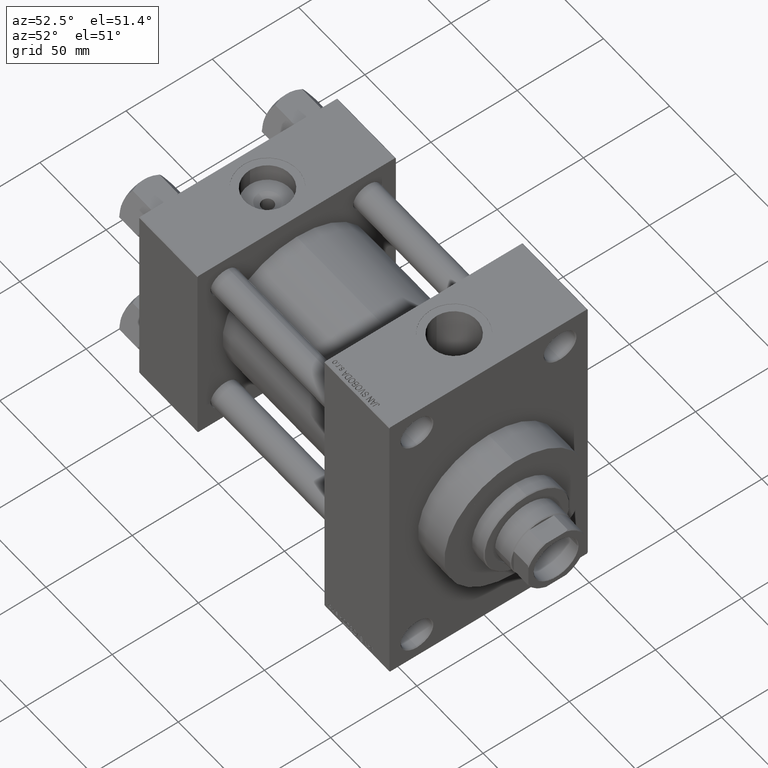
[diagram: clean part render]
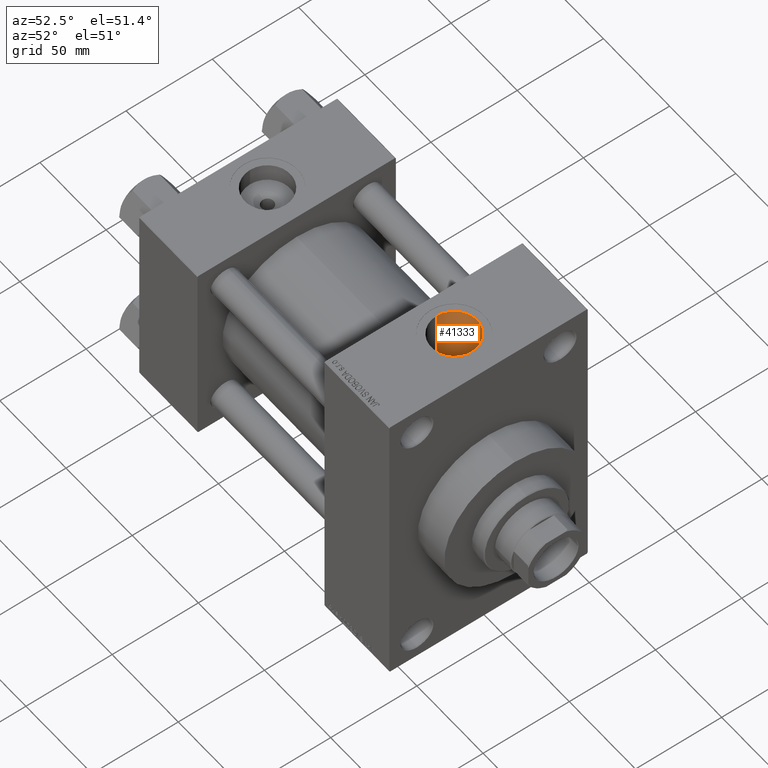
[diagram: same view with one face highlighted and labeled with its STEP entity id]
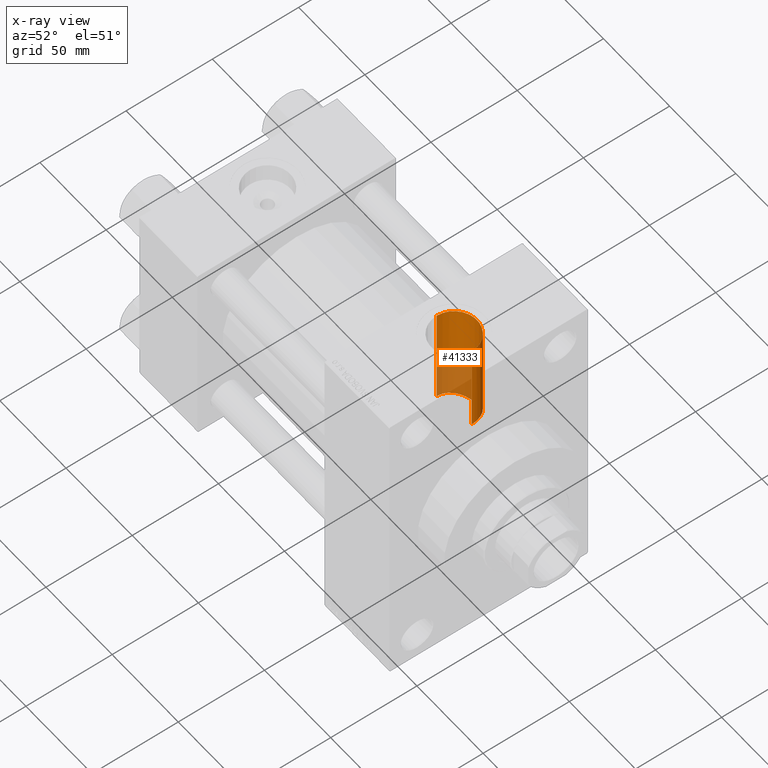
[diagram: x-ray of the same camera — body ghosted, the highlighted face saturated]
A machine part, auxiliary view. The second image highlights one B-rep face of the part: STEP entity #41333.
The next image is the same camera in x-ray: the body ghosted, the highlighted face saturated — about 34% of this face is hidden behind the body in this view.
In plain terms, the highlighted cylindrical surface (edge-blend (fillet) strip) has radius 13.22 mm, axis along (0, 0, -1).
Its self-contained STEP definition (entity closure, byte-faithful):
#838 = DIRECTION ( 'NONE',  ( 0.000000000000000000, 0.000000000000000000, -1.000000000000000000 ) ) ;
#1050 = DIRECTION ( 'NONE',  ( -0.000000000000000000, -0.000000000000000000, -1.000000000000000000 ) ) ;
#1386 = CARTESIAN_POINT ( 'NONE',  ( 149.7799999999999727, 3.735152335644797090E-15, 30.50000000000000000 ) ) ;
#1436 = AXIS2_PLACEMENT_3D ( 'NONE', #37422, #1050, #33093 ) ;
#3128 = CARTESIAN_POINT ( 'NONE',  ( 176.2033327349465424, 0.7640029534827996738, 35.99386990409604437 ) ) ;
#3602 = CARTESIAN_POINT ( 'NONE',  ( 172.2544909056830136, 9.447833359205608517, 34.73924717178599764 ) ) ;
#4969 = CARTESIAN_POINT ( 'NONE',  ( 153.9320074090819332, 9.632030437268104706, 28.94142039359465102 ) ) ;
#5448 = CARTESIAN_POINT ( 'NONE',  ( 149.8074965746004636, 0.9872482238805276866, 30.48805017778670745 ) ) ;
#5793 = ORIENTED_EDGE ( 'NONE', *, *, #13694, .T. ) ;
#5921 = CARTESIAN_POINT ( 'NONE',  ( 156.6661582615323596, 11.61426874580969226, 28.20310319464546112 ) ) ;
#6216 = VERTEX_POINT ( 'NONE', #21879 ) ;
#6275 = CARTESIAN_POINT ( 'NONE',  ( 174.1498648550291364, 7.141648424859574185, 35.29067191690104721 ) ) ;
#6740 = CARTESIAN_POINT ( 'NONE',  ( 175.1796393711020130, 5.154167772853369023, 35.63079688237382925 ) ) ;
#7756 = CARTESIAN_POINT ( 'NONE',  ( 161.8033419719260166, 13.17521242515511126, 27.50761348180682830 ) ) ;
#8381 = EDGE_CURVE ( 'NONE', #34270, #43379, #42970, .T. ) ;
#8591 = CARTESIAN_POINT ( 'NONE',  ( 152.0260244560768399, 7.434870375886682758, 29.59044782374041560 ) ) ;
#8782 = EDGE_CURVE ( 'NONE', #43379, #46857, #36297, .T. ) ;
#9287 = CARTESIAN_POINT ( 'NONE',  ( 149.7799999999999727, -1.086087741481131350E-14, 89.79999999999998295 ) ) ;
#9539 = CARTESIAN_POINT ( 'NONE',  ( 155.0371891369869104, 10.56380609296691908, 28.61398279029830150 ) ) ;
#11138 = CARTESIAN_POINT ( 'NONE',  ( 160.8119409645370297, 13.04724532387754898, 27.56854024737251407 ) ) ;
#12202 = CARTESIAN_POINT ( 'NONE',  ( 150.0034013176459098, 2.469744289827833672, 30.40367189608674181 ) ) ;
#12533 = CARTESIAN_POINT ( 'NONE',  ( 176.2199999999999989, -9.241894346338509984E-15, 89.79999999999998295 ) ) ;
#12579 = DIRECTION ( 'NONE',  ( 0.000000000000000000, 0.000000000000000000, -1.000000000000000000 ) ) ;
#12946 = ORIENTED_EDGE ( 'NONE', *, *, #20931, .T. ) ;
#13154 = CARTESIAN_POINT ( 'NONE',  ( 150.8710626762528761, 5.282033915368373300, 30.04254330308662091 ) ) ;
#13499 = CARTESIAN_POINT ( 'NONE',  ( 171.1482271659914716, 10.43671964436603261, 34.45770319535727566 ) ) ;
#13694 = EDGE_CURVE ( 'NONE', #42915, #6216, #31137, .T. ) ;
#13968 = CARTESIAN_POINT ( 'NONE',  ( 172.7718099334105091, 8.911727539146795607, 34.88062444271565710 ) ) ;
#14202 = CARTESIAN_POINT ( 'NONE',  ( 176.2199999999999989, 4.408731805096607676E-15, 36.00000000000000000 ) ) ;
#14505 = CARTESIAN_POINT ( 'NONE',  ( 164.7607663062245251, 13.11151955524789159, 27.53798861069347836 ) ) ;
#14628 = CARTESIAN_POINT ( 'NONE',  ( 176.2199999999999989, -9.241894346338509984E-15, 112.7999999999999829 ) ) ;
#15300 = VECTOR ( 'NONE', #32684, 1000.000000000000000 ) ;
#15953 = FACE_OUTER_BOUND ( 'NONE', #18620, .T. ) ;
#16284 = CARTESIAN_POINT ( 'NONE',  ( 154.2896176093950658, 9.956384615881496813, 28.83096279477899415 ) ) ;
#16758 = CARTESIAN_POINT ( 'NONE',  ( 149.7799999999999727, 3.735152335644797090E-15, 30.50000000000000000 ) ) ;
#17812 = CARTESIAN_POINT ( 'NONE',  ( 166.4867003901544535, 12.77473711426743108, 33.65761171941715446 ) ) ;
#18288 = CARTESIAN_POINT ( 'NONE',  ( 171.9855853527145939, 9.703877399782248503, 34.66842035655219689 ) ) ;
#18348 = CARTESIAN_POINT ( 'NONE',  ( 158.8969839307879113, 12.60537237624626528, 27.77446624569848765 ) ) ;
#18620 = EDGE_LOOP ( 'NONE', ( #34723, #39808, #12946, #5793, #26385, #42503 ) ) ;
#19145 = CARTESIAN_POINT ( 'NONE',  ( 149.7799999999999727, -1.086087741481131350E-14, 112.7999999999999829 ) ) ;
#19583 = EDGE_CURVE ( 'NONE', #27058, #46857, #23309, .T. ) ;
#19894 = CARTESIAN_POINT ( 'NONE',  ( 149.9192796940201617, 1.977766912824128420, 30.43984725220107990 ) ) ;
#20931 = EDGE_CURVE ( 'NONE', #34270, #42915, #44696, .T. ) ;
#21427 = CARTESIAN_POINT ( 'NONE',  ( 175.3223465543050281, 4.803346231252598741, 35.67993160896550364 ) ) ;
#21729 = CARTESIAN_POINT ( 'NONE',  ( 165.2536187678446993, 13.03598049970484318, 27.57401237756085166 ) ) ;
#21879 = CARTESIAN_POINT ( 'NONE',  ( 165.7400000000000091, 12.93293470176046078, 27.62225914004863014 ) ) ;
#23278 = CARTESIAN_POINT ( 'NONE',  ( 153.2493793498786090, 8.940352169284503603, 29.16250894268882377 ) ) ;
#23309 = B_SPLINE_CURVE_WITH_KNOTS ( 'NONE', 3,
 ( #36594, #17812, #46992, #39268, #28426, #39723, #13499, #18288, #3602, #13968, #32026, #35642, #6275, #46751, #36119, #6740, #21427, #28897, #47229, #43122, #28661, #3128, #32508, #14202 ),
 .UNSPECIFIED., .F., .F.,
 ( 4, 2, 2, 2, 2, 2, 2, 2, 2, 2, 2, 4 ),
 ( 0.000000000000000000, 0.002262540966026029086, 0.004525081932052058172, 0.006787622898078087691, 0.007918893381091132375, 0.009050163864104177058, 0.01131270483013032194, 0.01244397531314339438, 0.01357524579615646508, 0.01583778676218263945, 0.01696905724519572403, 0.01810032772820881208 ),
 .UNSPECIFIED. ) ;
#23417 = CYLINDRICAL_SURFACE ( 'NONE', #36798, 13.22000000000000952 ) ;
#23828 = EDGE_CURVE ( 'NONE', #27058, #6216, #25183, .T. ) ;
#24229 = CARTESIAN_POINT ( 'NONE',  ( 155.4271501200176715, 10.84687044312923199, 28.50745100355763739 ) ) ;
#25183 = LINE ( 'NONE', #43976, #39516 ) ;
#26385 = ORIENTED_EDGE ( 'NONE', *, *, #23828, .F. ) ;
#27058 = VERTEX_POINT ( 'NONE', #45253 ) ;
#27903 = VECTOR ( 'NONE', #838, 1000.000000000000000 ) ;
#28426 = CARTESIAN_POINT ( 'NONE',  ( 169.2649626807106813, 11.66558850424323701, 34.06003150599317308 ) ) ;
#28661 = CARTESIAN_POINT ( 'NONE',  ( 176.1379817546421407, 1.518265865167177875, 35.96994912351961204 ) ) ;
#28897 = CARTESIAN_POINT ( 'NONE',  ( 175.7051556392587202, 3.731388303156866648, 35.81334052950151658 ) ) ;
#29742 = DIRECTION ( 'NONE',  ( 0.000000000000000000, 0.000000000000000000, -1.000000000000000000 ) ) ;
#30639 = DIRECTION ( 'NONE',  ( -1.000000000000000000, 0.000000000000000000, 0.000000000000000000 ) ) ;
#31137 = B_SPLINE_CURVE_WITH_KNOTS ( 'NONE', 3,
 ( #16758, #38434, #5448, #19894, #12202, #41576, #31444, #46163, #13154, #38912, #8591, #42527, #23278, #4969, #16284, #9539, #24229, #45449, #5921, #46404, #18348, #44137, #11138, #7756, #42769, #43009, #33044, #14505, #21729, #32804 ),
 .UNSPECIFIED., .F., .F.,
 ( 4, 2, 2, 2, 2, 2, 2, 2, 2, 2, 2, 2, 2, 2, 4 ),
 ( 0.04185757538675118072, 0.04333653936425795050, 0.04481550334176472028, 0.04629446731927149006, 0.04777343129677825984, 0.05073135925179179939, 0.05221032322929854141, 0.05368928720680528344, 0.05516825118431202546, 0.05664721516181876748, 0.05960514311683218214, 0.06108410709433888253, 0.06256307107184558292, 0.06404203504935229718, 0.06552099902685899757 ),
 .UNSPECIFIED. ) ;
#31444 = CARTESIAN_POINT ( 'NONE',  ( 150.3594029954051337, 3.901785162874671808, 30.25300952143916433 ) ) ;
#32026 = CARTESIAN_POINT ( 'NONE',  ( 173.0210832298416221, 8.630590761265711564, 34.95143037011762033 ) ) ;
#32508 = CARTESIAN_POINT ( 'NONE',  ( 176.2200000000000273, 0.3819698288429408950, 36.00000000000000000 ) ) ;
#32684 = DIRECTION ( 'NONE',  ( 0.000000000000000000, 0.000000000000000000, -1.000000000000000000 ) ) ;
#32804 = CARTESIAN_POINT ( 'NONE',  ( 165.7400000000000091, 12.93293470176046078, 27.62225914004863014 ) ) ;
#33044 = CARTESIAN_POINT ( 'NONE',  ( 163.7777193278498942, 13.20633922326214282, 27.49264203546940877 ) ) ;
#33093 = DIRECTION ( 'NONE',  ( 1.000000000000000000, 0.000000000000000000, 0.000000000000000000 ) ) ;
#34270 = VERTEX_POINT ( 'NONE', #9287 ) ;
#34723 = ORIENTED_EDGE ( 'NONE', *, *, #8782, .F. ) ;
#35642 = CARTESIAN_POINT ( 'NONE',  ( 173.7312113704627734, 7.757108125705377333, 35.15943117783077554 ) ) ;
#36119 = CARTESIAN_POINT ( 'NONE',  ( 174.8678405391318904, 5.836387716606536102, 35.52542343625399468 ) ) ;
#36297 = LINE ( 'NONE', #14628, #15300 ) ;
#36594 = CARTESIAN_POINT ( 'NONE',  ( 165.7400000000000091, 12.93293470176046078, 33.59671412504503252 ) ) ;
#36798 = AXIS2_PLACEMENT_3D ( 'NONE', #38341, #12579, #30639 ) ;
#37422 = CARTESIAN_POINT ( 'NONE',  ( 162.9999999999999716, -1.086087741481131350E-14, 89.79999999999998295 ) ) ;
#38341 = CARTESIAN_POINT ( 'NONE',  ( 162.9999999999999716, -1.086087741481131350E-14, 112.7999999999999829 ) ) ;
#38434 = CARTESIAN_POINT ( 'NONE',  ( 149.7800000000000011, 0.4930897905089562938, 30.50000000000001066 ) ) ;
#38912 = CARTESIAN_POINT ( 'NONE',  ( 151.5110741800254175, 6.613878971456268907, 29.78798023624083413 ) ) ;
#39268 = CARTESIAN_POINT ( 'NONE',  ( 168.5945103277782380, 12.00118958920801404, 33.94198458417640296 ) ) ;
#39516 = VECTOR ( 'NONE', #29742, 1000.000000000000000 ) ;
#39723 = CARTESIAN_POINT ( 'NONE',  ( 170.5493998682712800, 10.87852352895256836, 34.31951962323491045 ) ) ;
#39808 = ORIENTED_EDGE ( 'NONE', *, *, #8381, .F. ) ;
#41333 = ADVANCED_FACE ( 'NONE', ( #15953 ), #23417, .F. ) ;
#41576 = CARTESIAN_POINT ( 'NONE',  ( 150.2233236804502781, 3.430416358514374764, 30.31031417239465497 ) ) ;
#42503 = ORIENTED_EDGE ( 'NONE', *, *, #19583, .T. ) ;
#42527 = CARTESIAN_POINT ( 'NONE',  ( 152.9260598174466566, 8.574286465039142158, 29.27263374885119873 ) ) ;
#42769 = CARTESIAN_POINT ( 'NONE',  ( 162.2979727381282089, 13.21057355757992369, 27.49055875873991539 ) ) ;
#42915 = VERTEX_POINT ( 'NONE', #1386 ) ;
#42970 = CIRCLE ( 'NONE', #1436, 13.22000000000000952 ) ;
#43009 = CARTESIAN_POINT ( 'NONE',  ( 163.2851615108021690, 13.22613998524883527, 27.48307289366608330 ) ) ;
#43122 = CARTESIAN_POINT ( 'NONE',  ( 176.0893087182808188, 1.892035420910296750, 35.95216273564660980 ) ) ;
#43379 = VERTEX_POINT ( 'NONE', #12533 ) ;
#43976 = CARTESIAN_POINT ( 'NONE',  ( 165.7400000000000091, 12.93293470176046078, 112.7999999999999829 ) ) ;
#44137 = CARTESIAN_POINT ( 'NONE',  ( 160.3256342958763128, 12.95594869095345025, 27.61177267963251580 ) ) ;
#44696 = LINE ( 'NONE', #19145, #27903 ) ;
#45253 = CARTESIAN_POINT ( 'NONE',  ( 165.7400000000000091, 12.93293470176046078, 33.59671412504503252 ) ) ;
#45449 = CARTESIAN_POINT ( 'NONE',  ( 156.2405905081905644, 11.37158902866329591, 28.30223178644140702 ) ) ;
#45632 = CARTESIAN_POINT ( 'NONE',  ( 176.2199999999999989, 4.408731805096607676E-15, 36.00000000000000000 ) ) ;
#46163 = CARTESIAN_POINT ( 'NONE',  ( 150.6830193899776305, 4.827070409900209746, 30.11922814116231706 ) ) ;
#46404 = CARTESIAN_POINT ( 'NONE',  ( 157.9827127633823807, 12.27015841204416624, 27.92701712990832164 ) ) ;
#46751 = CARTESIAN_POINT ( 'NONE',  ( 174.6983450057127811, 6.168928695871315426, 35.46904263421720316 ) ) ;
#46857 = VERTEX_POINT ( 'NONE', #45632 ) ;
#46992 = CARTESIAN_POINT ( 'NONE',  ( 167.2060821151613368, 12.55531642788235125, 33.74093801992368924 ) ) ;
#47229 = CARTESIAN_POINT ( 'NONE',  ( 175.8962416663182751, 3.003490287928880953, 35.88217189229079906 ) ) ;